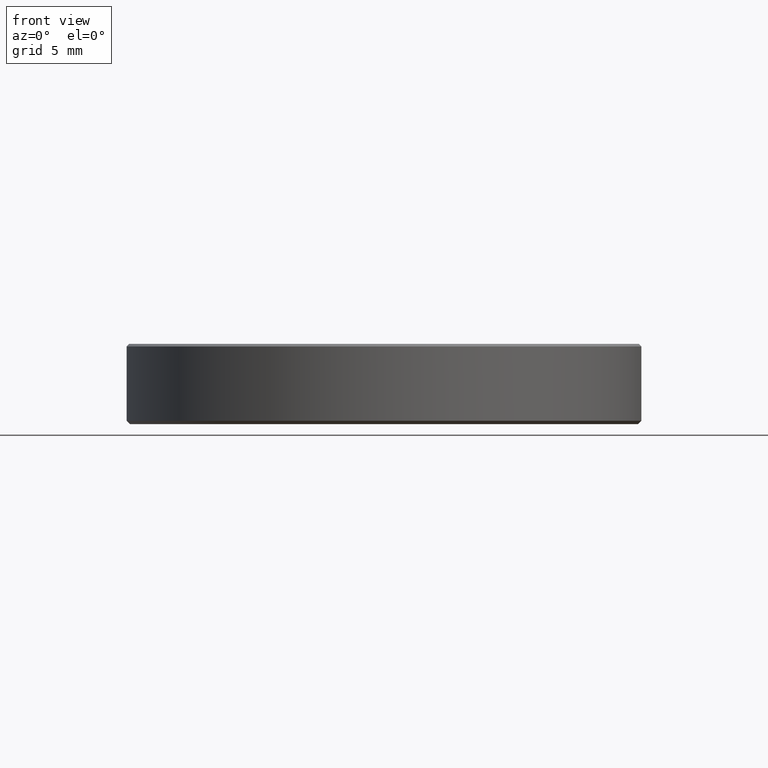
[diagram: clean part render]
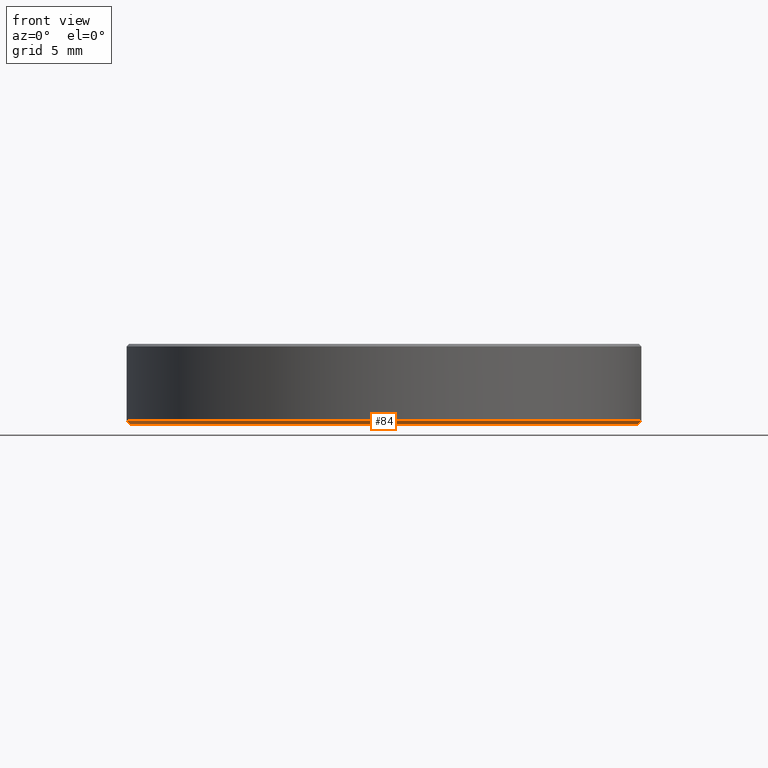
[diagram: same view with one face highlighted and labeled with its STEP entity id]
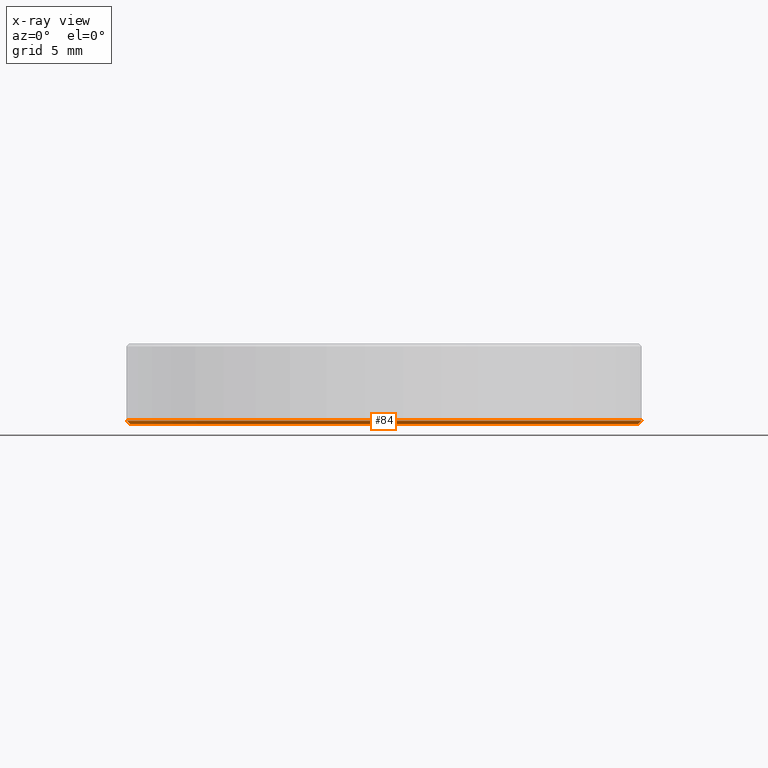
[diagram: x-ray of the same camera — body ghosted, the highlighted face saturated]
A machine part, front view. The second image highlights one B-rep face of the part: STEP entity #84.
The next image is the same camera in x-ray: the body ghosted, the highlighted face saturated — about 0% of this face is hidden behind the body in this view.
In plain terms, the highlighted conical surface has half-angle 45 deg.
Its self-contained STEP definition (entity closure, byte-faithful):
#4 = CARTESIAN_POINT ( 'NONE',  ( 0.000000000000000000, 0.000000000000000000, 0.1999999999999996503 ) ) ;
#7 = CARTESIAN_POINT ( 'NONE',  ( 15.00000000000000000, 0.000000000000000000, 0.1999999999999996503 ) ) ;
#8 = DIRECTION ( 'NONE',  ( 0.7071067811865474617, 0.000000000000000000, 0.7071067811865474617 ) ) ;
#19 = EDGE_CURVE ( 'NONE', #74, #169, #34, .T. ) ;
#21 = CIRCLE ( 'NONE', #62, 15.00000000000000000 ) ;
#27 = EDGE_CURVE ( 'NONE', #169, #91, #210, .T. ) ;
#34 = CIRCLE ( 'NONE', #70, 14.80000000000000071 ) ;
#41 = EDGE_CURVE ( 'NONE', #91, #80, #21, .T. ) ;
#60 = EDGE_LOOP ( 'NONE', ( #164, #264, #187, #124 ) ) ;
#61 = CARTESIAN_POINT ( 'NONE',  ( -15.00000000000000000, 1.836970198721029589E-15, 0.1999999999999996503 ) ) ;
#62 = AXIS2_PLACEMENT_3D ( 'NONE', #147, #75, #222 ) ;
#66 = DIRECTION ( 'NONE',  ( 1.000000000000000000, 0.000000000000000000, 0.000000000000000000 ) ) ;
#70 = AXIS2_PLACEMENT_3D ( 'NONE', #167, #246, #245 ) ;
#74 = VERTEX_POINT ( 'NONE', #101 ) ;
#75 = DIRECTION ( 'NONE',  ( -0.000000000000000000, -0.000000000000000000, 1.000000000000000000 ) ) ;
#80 = VERTEX_POINT ( 'NONE', #171 ) ;
#83 = VECTOR ( 'NONE', #8, 1000.000000000000114 ) ;
#84 = ADVANCED_FACE ( 'NONE', ( #253 ), #203, .T. ) ;
#88 = DIRECTION ( 'NONE',  ( -0.000000000000000000, -0.000000000000000000, 1.000000000000000000 ) ) ;
#91 = VERTEX_POINT ( 'NONE', #249 ) ;
#101 = CARTESIAN_POINT ( 'NONE',  ( 14.80000000000000071, 0.000000000000000000, 9.184850993605147944E-16 ) ) ;
#104 = LINE ( 'NONE', #7, #83 ) ;
#106 = CARTESIAN_POINT ( 'NONE',  ( -14.80000000000000071, 1.824723730729555837E-15, 9.184850993605147944E-16 ) ) ;
#124 = ORIENTED_EDGE ( 'NONE', *, *, #41, .F. ) ;
#144 = VECTOR ( 'NONE', #221, 1000.000000000000114 ) ;
#147 = CARTESIAN_POINT ( 'NONE',  ( 0.000000000000000000, 0.000000000000000000, 0.1999999999999996503 ) ) ;
#164 = ORIENTED_EDGE ( 'NONE', *, *, #27, .F. ) ;
#167 = CARTESIAN_POINT ( 'NONE',  ( 0.000000000000000000, 0.000000000000000000, 9.184850993605147944E-16 ) ) ;
#169 = VERTEX_POINT ( 'NONE', #106 ) ;
#171 = CARTESIAN_POINT ( 'NONE',  ( 15.00000000000000000, 0.000000000000000000, 0.1999999999999996503 ) ) ;
#187 = ORIENTED_EDGE ( 'NONE', *, *, #197, .T. ) ;
#197 = EDGE_CURVE ( 'NONE', #74, #80, #104, .T. ) ;
#203 = CONICAL_SURFACE ( 'NONE', #234, 15.00000000000000000, 0.7853981633974482790 ) ;
#210 = LINE ( 'NONE', #61, #144 ) ;
#221 = DIRECTION ( 'NONE',  ( -0.7071067811865474617, 8.659560562354932858E-17, 0.7071067811865474617 ) ) ;
#222 = DIRECTION ( 'NONE',  ( 1.000000000000000000, 0.000000000000000000, 0.000000000000000000 ) ) ;
#234 = AXIS2_PLACEMENT_3D ( 'NONE', #4, #88, #66 ) ;
#245 = DIRECTION ( 'NONE',  ( 1.000000000000000000, 0.000000000000000000, 0.000000000000000000 ) ) ;
#246 = DIRECTION ( 'NONE',  ( 0.000000000000000000, 0.000000000000000000, -1.000000000000000000 ) ) ;
#249 = CARTESIAN_POINT ( 'NONE',  ( -15.00000000000000000, 1.836970198721029589E-15, 0.1999999999999996503 ) ) ;
#253 = FACE_OUTER_BOUND ( 'NONE', #60, .T. ) ;
#264 = ORIENTED_EDGE ( 'NONE', *, *, #19, .F. ) ;